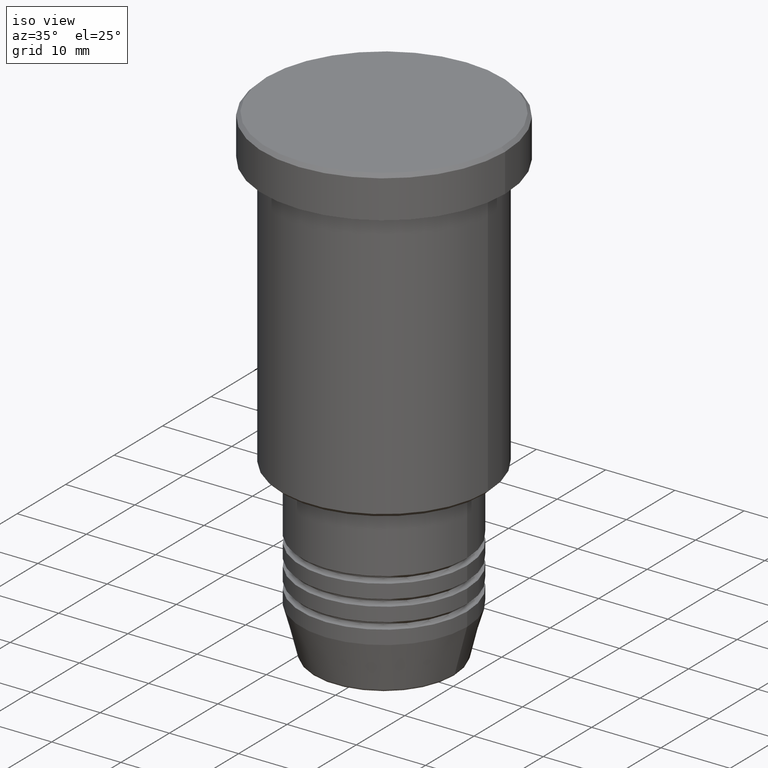
[diagram: clean part render]
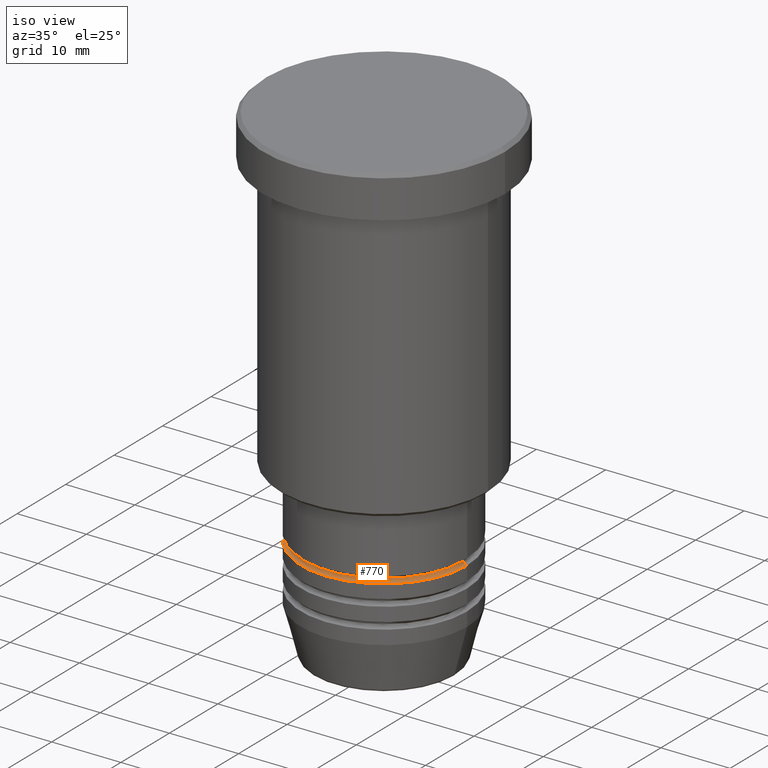
[diagram: same view with one face highlighted and labeled with its STEP entity id]
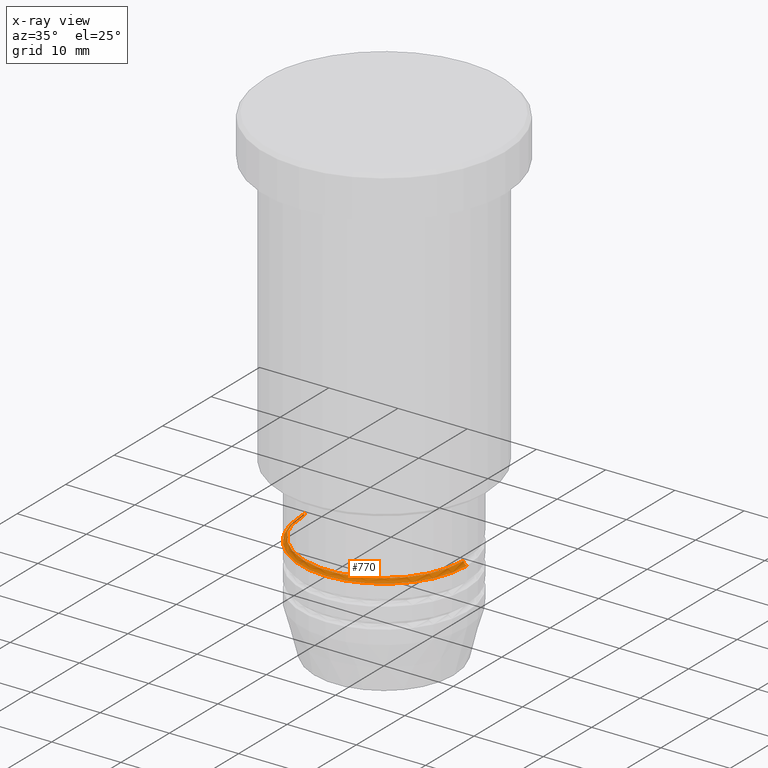
[diagram: x-ray of the same camera — body ghosted, the highlighted face saturated]
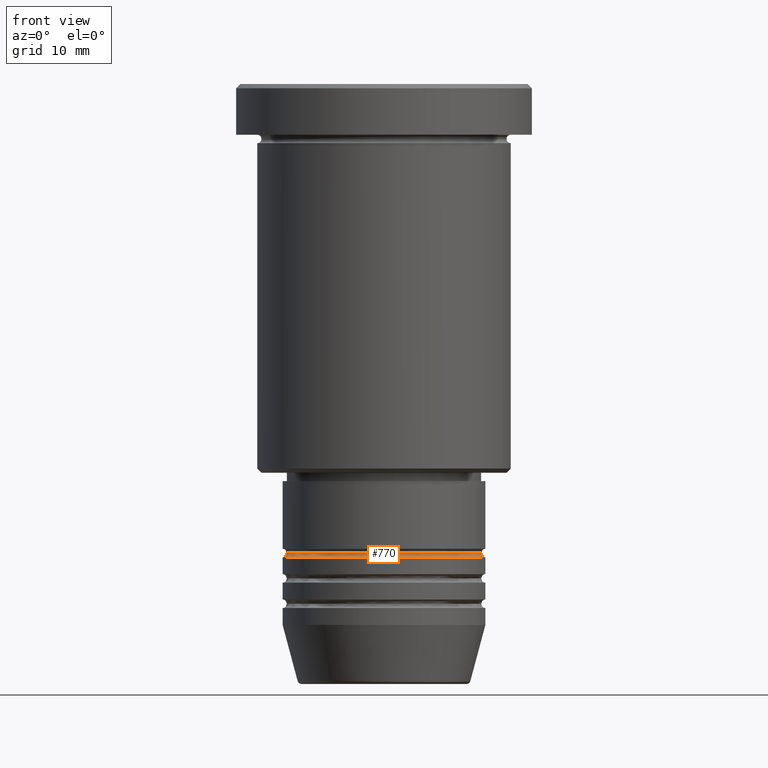
[diagram: same view with one face highlighted and labeled with its STEP entity id]
A machine part, iso view. The second image highlights one B-rep face of the part: STEP entity #770.
The next image is the same camera in x-ray: the body ghosted, the highlighted face saturated — about 2% of this face is hidden behind the body in this view.
A second angle (front view) of the same face is appended — the face is thin or edge-on in the first view.
In plain terms, the highlighted toroidal blend (fillet) surface has major radius 12 mm and minor (blend) radius 0.5 mm.
Its self-contained STEP definition (entity closure, byte-faithful):
#49 = ORIENTED_EDGE ( 'NONE', *, *, #888, .T. ) ;
#63 = AXIS2_PLACEMENT_3D ( 'NONE', #335, #699, #792 ) ;
#93 = AXIS2_PLACEMENT_3D ( 'NONE', #758, #389, #301 ) ;
#152 = EDGE_CURVE ( 'NONE', #324, #739, #555, .T. ) ;
#175 = CARTESIAN_POINT ( 'NONE',  ( 12.00000000000000000, 0.000000000000000000, -55.99999999999997868 ) ) ;
#194 = AXIS2_PLACEMENT_3D ( 'NONE', #970, #693, #887 ) ;
#198 = CIRCLE ( 'NONE', #194, 11.50000000000000000 ) ;
#221 = AXIS2_PLACEMENT_3D ( 'NONE', #986, #449, #995 ) ;
#258 = ORIENTED_EDGE ( 'NONE', *, *, #857, .T. ) ;
#301 = DIRECTION ( 'NONE',  ( 1.000000000000000000, 0.000000000000000000, 0.000000000000000000 ) ) ;
#324 = VERTEX_POINT ( 'NONE', #635 ) ;
#335 = CARTESIAN_POINT ( 'NONE',  ( 12.00000000000000000, 0.000000000000000000, -55.49999999999997868 ) ) ;
#358 = FACE_OUTER_BOUND ( 'NONE', #559, .T. ) ;
#368 = VERTEX_POINT ( 'NONE', #1101 ) ;
#389 = DIRECTION ( 'NONE',  ( -0.000000000000000000, -0.000000000000000000, 1.000000000000000000 ) ) ;
#405 = TOROIDAL_SURFACE ( 'NONE', #221, 12.00000000000000000, 0.5000000000000000000 ) ;
#413 = VERTEX_POINT ( 'NONE', #481 ) ;
#449 = DIRECTION ( 'NONE',  ( -0.000000000000000000, -0.000000000000000000, 1.000000000000000000 ) ) ;
#481 = CARTESIAN_POINT ( 'NONE',  ( -11.50000000000000000, 1.438959988998139963E-15, -55.49999999999997868 ) ) ;
#495 = AXIS2_PLACEMENT_3D ( 'NONE', #1043, #934, #862 ) ;
#555 = CIRCLE ( 'NONE', #63, 0.5000000000000004441 ) ;
#559 = EDGE_LOOP ( 'NONE', ( #1006, #258, #49, #930 ) ) ;
#578 = EDGE_CURVE ( 'NONE', #413, #324, #198, .T. ) ;
#635 = CARTESIAN_POINT ( 'NONE',  ( 11.50000000000000000, 0.000000000000000000, -55.49999999999997868 ) ) ;
#693 = DIRECTION ( 'NONE',  ( -0.000000000000000000, -0.000000000000000000, 1.000000000000000000 ) ) ;
#699 = DIRECTION ( 'NONE',  ( 0.000000000000000000, -1.000000000000000000, 0.000000000000000000 ) ) ;
#739 = VERTEX_POINT ( 'NONE', #175 ) ;
#758 = CARTESIAN_POINT ( 'NONE',  ( 0.000000000000000000, 0.000000000000000000, -55.99999999999997868 ) ) ;
#770 = ADVANCED_FACE ( 'NONE', ( #358 ), #405, .F. ) ;
#792 = DIRECTION ( 'NONE',  ( 0.000000000000000000, 0.000000000000000000, -1.000000000000000000 ) ) ;
#857 = EDGE_CURVE ( 'NONE', #413, #368, #1149, .T. ) ;
#862 = DIRECTION ( 'NONE',  ( -1.000000000000000000, 1.224646799147353454E-16, 0.000000000000000000 ) ) ;
#887 = DIRECTION ( 'NONE',  ( 1.000000000000000000, 0.000000000000000000, 0.000000000000000000 ) ) ;
#888 = EDGE_CURVE ( 'NONE', #368, #739, #1032, .T. ) ;
#930 = ORIENTED_EDGE ( 'NONE', *, *, #152, .F. ) ;
#934 = DIRECTION ( 'NONE',  ( 1.224646799147353207E-16, 1.000000000000000000, 0.000000000000000000 ) ) ;
#970 = CARTESIAN_POINT ( 'NONE',  ( 0.000000000000000000, 0.000000000000000000, -55.49999999999997868 ) ) ;
#986 = CARTESIAN_POINT ( 'NONE',  ( 0.000000000000000000, 0.000000000000000000, -55.49999999999997868 ) ) ;
#995 = DIRECTION ( 'NONE',  ( 1.000000000000000000, 0.000000000000000000, 0.000000000000000000 ) ) ;
#1006 = ORIENTED_EDGE ( 'NONE', *, *, #578, .F. ) ;
#1032 = CIRCLE ( 'NONE', #93, 12.00000000000000000 ) ;
#1043 = CARTESIAN_POINT ( 'NONE',  ( -12.00000000000000000, 1.469576158976823947E-15, -55.49999999999997868 ) ) ;
#1101 = CARTESIAN_POINT ( 'NONE',  ( -12.00000000000000000, 1.469576158976823947E-15, -55.99999999999997868 ) ) ;
#1149 = CIRCLE ( 'NONE', #495, 0.5000000000000004441 ) ;